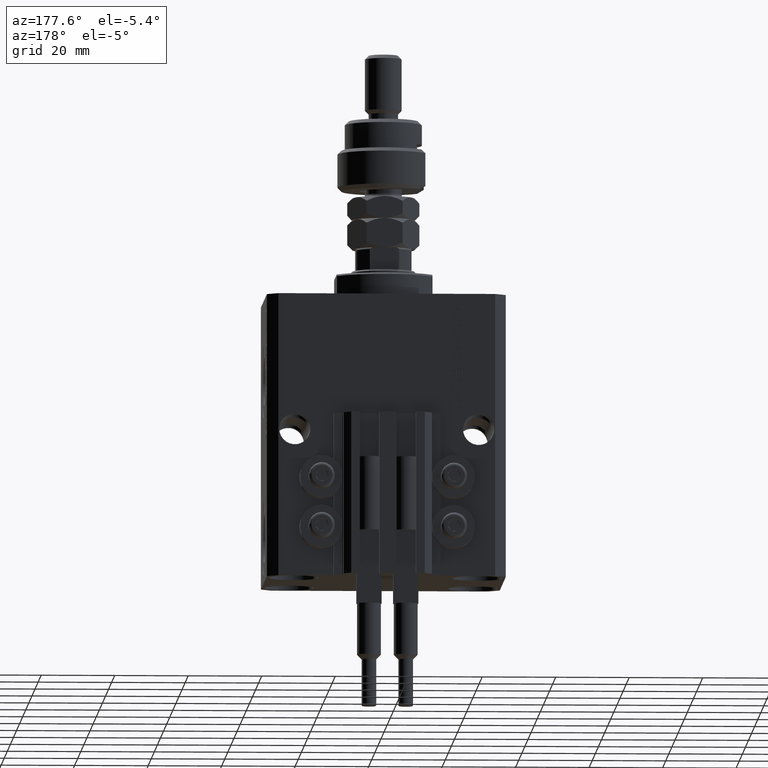
[diagram: clean part render]
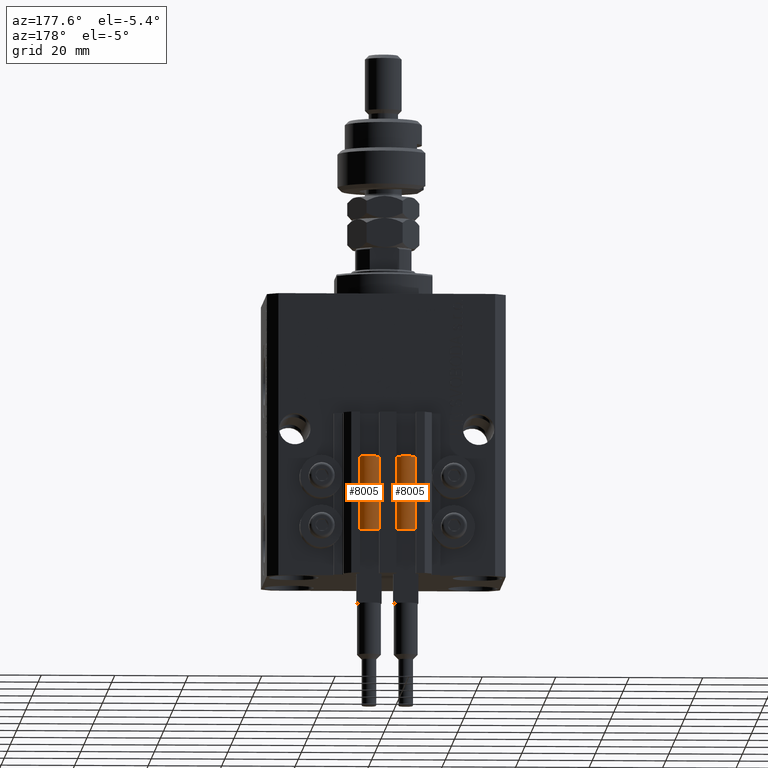
[diagram: same view with one multi-face feature highlighted, each face labeled with its STEP entity id]
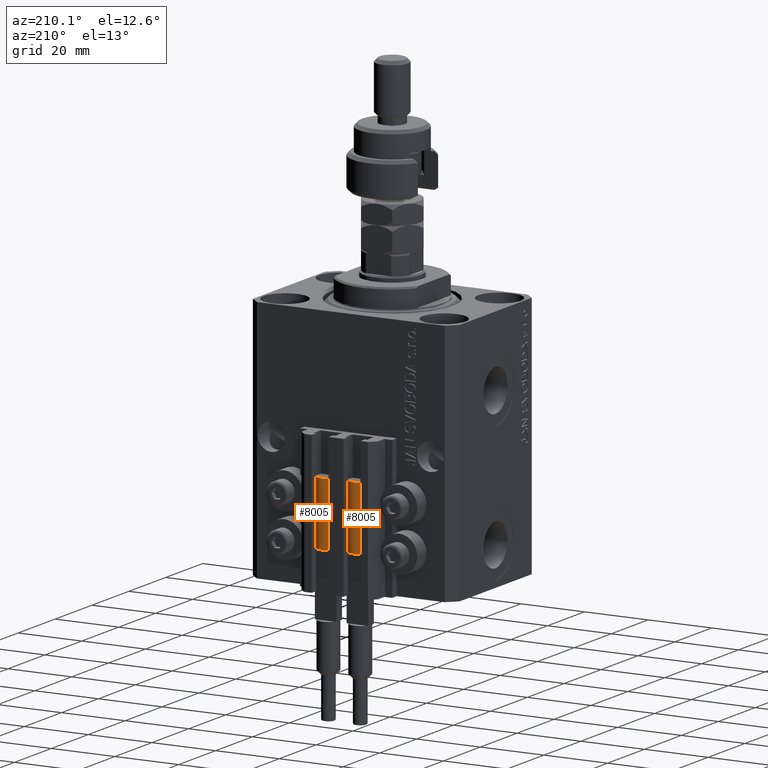
[diagram: same view with one multi-face feature highlighted, each face labeled with its STEP entity id]
A machine part, auxiliary view. The highlighted faces form ONE feature: a constant-radius fillet chain: 2 tangent blend faces with common blend radius 3.4 mm. The faces share edges in the B-rep.
A second angle (auxiliary view) of the same feature is appended — it is thin or edge-on in the first view.
Their STEP definitions:
[1] entity #8005 (Cylinder):
#426 = EDGE_CURVE ( 'NONE', #49537, #34113, #1283, .T. ) ;
#861 = VERTEX_POINT ( 'NONE', #32813 ) ;
#1034 = DIRECTION ( 'NONE',  ( -0.000000000000000000, -0.000000000000000000, -1.000000000000000000 ) ) ;
#1283 = LINE ( 'NONE', #12978, #1531 ) ;
#1531 = VECTOR ( 'NONE', #1034, 1000.000000000000000 ) ;
#2496 = AXIS2_PLACEMENT_3D ( 'NONE', #43883, #28309, #48032 ) ;
#3184 = DIRECTION ( 'NONE',  ( -0.000000000000000000, -0.000000000000000000, -1.000000000000000000 ) ) ;
#3766 = VERTEX_POINT ( 'NONE', #45652 ) ;
#4433 = CARTESIAN_POINT ( 'NONE',  ( -3.400000000000000355, 0.000000000000000000, 0.000000000000000000 ) ) ;
#4488 = EDGE_CURVE ( 'NONE', #3766, #861, #25740, .T. ) ;
#4784 = CARTESIAN_POINT ( 'NONE',  ( 0.000000000000000000, 0.000000000000000000, 20.00000000000000000 ) ) ;
#5520 = ORIENTED_EDGE ( 'NONE', *, *, #9690, .F. ) ;
#7719 = CIRCLE ( 'NONE', #27646, 3.400000000000000355 ) ;
#8005 = ADVANCED_FACE ( 'NONE', ( #50962 ), #23447, .T. ) ;
#8614 = ORIENTED_EDGE ( 'NONE', *, *, #31953, .F. ) ;
#8837 = DIRECTION ( 'NONE',  ( -0.000000000000000000, -0.000000000000000000, -1.000000000000000000 ) ) ;
#9215 = ORIENTED_EDGE ( 'NONE', *, *, #4488, .F. ) ;
#9690 = EDGE_CURVE ( 'NONE', #861, #49537, #7719, .T. ) ;
#10081 = EDGE_CURVE ( 'NONE', #24505, #19708, #20033, .T. ) ;
#10414 = CARTESIAN_POINT ( 'NONE',  ( 3.400000000000000355, 4.163799117101001052E-16, 0.000000000000000000 ) ) ;
#10907 = EDGE_CURVE ( 'NONE', #19708, #34113, #21729, .T. ) ;
#11237 = DIRECTION ( 'NONE',  ( -1.000000000000000000, 0.000000000000000000, 0.000000000000000000 ) ) ;
#11476 = CARTESIAN_POINT ( 'NONE',  ( 0.000000000000000000, 0.000000000000000000, 0.000000000000000000 ) ) ;
#12978 = CARTESIAN_POINT ( 'NONE',  ( -3.400000000000000355, 0.000000000000000000, 20.00000000000000000 ) ) ;
#14310 = CARTESIAN_POINT ( 'NONE',  ( -3.399999999999999467, -4.915049848600952119E-16, 20.00000000000000000 ) ) ;
#14905 = DIRECTION ( 'NONE',  ( 0.000000000000000000, 0.000000000000000000, 1.000000000000000000 ) ) ;
#15370 = DIRECTION ( 'NONE',  ( 0.000000000000000000, 0.000000000000000000, 1.000000000000000000 ) ) ;
#19016 = CARTESIAN_POINT ( 'NONE',  ( 0.000000000000000000, 0.000000000000000000, 20.00000000000000000 ) ) ;
#19708 = VERTEX_POINT ( 'NONE', #10414 ) ;
#20033 = LINE ( 'NONE', #44432, #31792 ) ;
#20874 = DIRECTION ( 'NONE',  ( 1.000000000000000000, 0.000000000000000000, 0.000000000000000000 ) ) ;
#21729 = CIRCLE ( 'NONE', #29178, 3.400000000000000355 ) ;
#22445 = CARTESIAN_POINT ( 'NONE',  ( 0.000000000000000000, 0.000000000000000000, 20.00000000000000000 ) ) ;
#22457 = ORIENTED_EDGE ( 'NONE', *, *, #426, .F. ) ;
#23447 = CYLINDRICAL_SURFACE ( 'NONE', #47431, 3.400000000000000355 ) ;
#24505 = VERTEX_POINT ( 'NONE', #43647 ) ;
#25740 = CIRCLE ( 'NONE', #28241, 3.400000000000000355 ) ;
#27646 = AXIS2_PLACEMENT_3D ( 'NONE', #22445, #14905, #34902 ) ;
#28241 = AXIS2_PLACEMENT_3D ( 'NONE', #4784, #32573, #20874 ) ;
#28309 = DIRECTION ( 'NONE',  ( 0.000000000000000000, 0.000000000000000000, 1.000000000000000000 ) ) ;
#29178 = AXIS2_PLACEMENT_3D ( 'NONE', #11476, #15370, #47061 ) ;
#29846 = ORIENTED_EDGE ( 'NONE', *, *, #10907, .T. ) ;
#31792 = VECTOR ( 'NONE', #8837, 1000.000000000000000 ) ;
#31953 = EDGE_CURVE ( 'NONE', #24505, #3766, #35705, .T. ) ;
#32573 = DIRECTION ( 'NONE',  ( 0.000000000000000000, 0.000000000000000000, 1.000000000000000000 ) ) ;
#32813 = CARTESIAN_POINT ( 'NONE',  ( -3.051229260478471428, 1.500000000000000000, 20.00000000000000000 ) ) ;
#33877 = EDGE_LOOP ( 'NONE', ( #8614, #36564, #29846, #22457, #5520, #9215 ) ) ;
#34113 = VERTEX_POINT ( 'NONE', #4433 ) ;
#34902 = DIRECTION ( 'NONE',  ( 1.000000000000000000, 0.000000000000000000, 0.000000000000000000 ) ) ;
#35705 = CIRCLE ( 'NONE', #2496, 3.400000000000000355 ) ;
#36564 = ORIENTED_EDGE ( 'NONE', *, *, #10081, .T. ) ;
#43647 = CARTESIAN_POINT ( 'NONE',  ( 3.400000000000000355, 0.000000000000000000, 20.00000000000000000 ) ) ;
#43883 = CARTESIAN_POINT ( 'NONE',  ( 0.000000000000000000, 0.000000000000000000, 20.00000000000000000 ) ) ;
#44432 = CARTESIAN_POINT ( 'NONE',  ( 3.400000000000000355, 4.163799117101001052E-16, 20.00000000000000000 ) ) ;
#45652 = CARTESIAN_POINT ( 'NONE',  ( 3.051229260478471428, 1.500000000000000000, 20.00000000000000000 ) ) ;
#47061 = DIRECTION ( 'NONE',  ( 1.000000000000000000, 0.000000000000000000, 0.000000000000000000 ) ) ;
#47431 = AXIS2_PLACEMENT_3D ( 'NONE', #19016, #3184, #11237 ) ;
#48032 = DIRECTION ( 'NONE',  ( 1.000000000000000000, 0.000000000000000000, 0.000000000000000000 ) ) ;
#49537 = VERTEX_POINT ( 'NONE', #14310 ) ;
#50962 = FACE_OUTER_BOUND ( 'NONE', #33877, .T. ) ;
[2] entity #8005 (Cylinder):
#426 = EDGE_CURVE ( 'NONE', #49537, #34113, #1283, .T. ) ;
#861 = VERTEX_POINT ( 'NONE', #32813 ) ;
#1034 = DIRECTION ( 'NONE',  ( -0.000000000000000000, -0.000000000000000000, -1.000000000000000000 ) ) ;
#1283 = LINE ( 'NONE', #12978, #1531 ) ;
#1531 = VECTOR ( 'NONE', #1034, 1000.000000000000000 ) ;
#2496 = AXIS2_PLACEMENT_3D ( 'NONE', #43883, #28309, #48032 ) ;
#3184 = DIRECTION ( 'NONE',  ( -0.000000000000000000, -0.000000000000000000, -1.000000000000000000 ) ) ;
#3766 = VERTEX_POINT ( 'NONE', #45652 ) ;
#4433 = CARTESIAN_POINT ( 'NONE',  ( -3.400000000000000355, 0.000000000000000000, 0.000000000000000000 ) ) ;
#4488 = EDGE_CURVE ( 'NONE', #3766, #861, #25740, .T. ) ;
#4784 = CARTESIAN_POINT ( 'NONE',  ( 0.000000000000000000, 0.000000000000000000, 20.00000000000000000 ) ) ;
#5520 = ORIENTED_EDGE ( 'NONE', *, *, #9690, .F. ) ;
#7719 = CIRCLE ( 'NONE', #27646, 3.400000000000000355 ) ;
#8005 = ADVANCED_FACE ( 'NONE', ( #50962 ), #23447, .T. ) ;
#8614 = ORIENTED_EDGE ( 'NONE', *, *, #31953, .F. ) ;
#8837 = DIRECTION ( 'NONE',  ( -0.000000000000000000, -0.000000000000000000, -1.000000000000000000 ) ) ;
#9215 = ORIENTED_EDGE ( 'NONE', *, *, #4488, .F. ) ;
#9690 = EDGE_CURVE ( 'NONE', #861, #49537, #7719, .T. ) ;
#10081 = EDGE_CURVE ( 'NONE', #24505, #19708, #20033, .T. ) ;
#10414 = CARTESIAN_POINT ( 'NONE',  ( 3.400000000000000355, 4.163799117101001052E-16, 0.000000000000000000 ) ) ;
#10907 = EDGE_CURVE ( 'NONE', #19708, #34113, #21729, .T. ) ;
#11237 = DIRECTION ( 'NONE',  ( -1.000000000000000000, 0.000000000000000000, 0.000000000000000000 ) ) ;
#11476 = CARTESIAN_POINT ( 'NONE',  ( 0.000000000000000000, 0.000000000000000000, 0.000000000000000000 ) ) ;
#12978 = CARTESIAN_POINT ( 'NONE',  ( -3.400000000000000355, 0.000000000000000000, 20.00000000000000000 ) ) ;
#14310 = CARTESIAN_POINT ( 'NONE',  ( -3.399999999999999467, -4.915049848600952119E-16, 20.00000000000000000 ) ) ;
#14905 = DIRECTION ( 'NONE',  ( 0.000000000000000000, 0.000000000000000000, 1.000000000000000000 ) ) ;
#15370 = DIRECTION ( 'NONE',  ( 0.000000000000000000, 0.000000000000000000, 1.000000000000000000 ) ) ;
#19016 = CARTESIAN_POINT ( 'NONE',  ( 0.000000000000000000, 0.000000000000000000, 20.00000000000000000 ) ) ;
#19708 = VERTEX_POINT ( 'NONE', #10414 ) ;
#20033 = LINE ( 'NONE', #44432, #31792 ) ;
#20874 = DIRECTION ( 'NONE',  ( 1.000000000000000000, 0.000000000000000000, 0.000000000000000000 ) ) ;
#21729 = CIRCLE ( 'NONE', #29178, 3.400000000000000355 ) ;
#22445 = CARTESIAN_POINT ( 'NONE',  ( 0.000000000000000000, 0.000000000000000000, 20.00000000000000000 ) ) ;
#22457 = ORIENTED_EDGE ( 'NONE', *, *, #426, .F. ) ;
#23447 = CYLINDRICAL_SURFACE ( 'NONE', #47431, 3.400000000000000355 ) ;
#24505 = VERTEX_POINT ( 'NONE', #43647 ) ;
#25740 = CIRCLE ( 'NONE', #28241, 3.400000000000000355 ) ;
#27646 = AXIS2_PLACEMENT_3D ( 'NONE', #22445, #14905, #34902 ) ;
#28241 = AXIS2_PLACEMENT_3D ( 'NONE', #4784, #32573, #20874 ) ;
#28309 = DIRECTION ( 'NONE',  ( 0.000000000000000000, 0.000000000000000000, 1.000000000000000000 ) ) ;
#29178 = AXIS2_PLACEMENT_3D ( 'NONE', #11476, #15370, #47061 ) ;
#29846 = ORIENTED_EDGE ( 'NONE', *, *, #10907, .T. ) ;
#31792 = VECTOR ( 'NONE', #8837, 1000.000000000000000 ) ;
#31953 = EDGE_CURVE ( 'NONE', #24505, #3766, #35705, .T. ) ;
#32573 = DIRECTION ( 'NONE',  ( 0.000000000000000000, 0.000000000000000000, 1.000000000000000000 ) ) ;
#32813 = CARTESIAN_POINT ( 'NONE',  ( -3.051229260478471428, 1.500000000000000000, 20.00000000000000000 ) ) ;
#33877 = EDGE_LOOP ( 'NONE', ( #8614, #36564, #29846, #22457, #5520, #9215 ) ) ;
#34113 = VERTEX_POINT ( 'NONE', #4433 ) ;
#34902 = DIRECTION ( 'NONE',  ( 1.000000000000000000, 0.000000000000000000, 0.000000000000000000 ) ) ;
#35705 = CIRCLE ( 'NONE', #2496, 3.400000000000000355 ) ;
#36564 = ORIENTED_EDGE ( 'NONE', *, *, #10081, .T. ) ;
#43647 = CARTESIAN_POINT ( 'NONE',  ( 3.400000000000000355, 0.000000000000000000, 20.00000000000000000 ) ) ;
#43883 = CARTESIAN_POINT ( 'NONE',  ( 0.000000000000000000, 0.000000000000000000, 20.00000000000000000 ) ) ;
#44432 = CARTESIAN_POINT ( 'NONE',  ( 3.400000000000000355, 4.163799117101001052E-16, 20.00000000000000000 ) ) ;
#45652 = CARTESIAN_POINT ( 'NONE',  ( 3.051229260478471428, 1.500000000000000000, 20.00000000000000000 ) ) ;
#47061 = DIRECTION ( 'NONE',  ( 1.000000000000000000, 0.000000000000000000, 0.000000000000000000 ) ) ;
#47431 = AXIS2_PLACEMENT_3D ( 'NONE', #19016, #3184, #11237 ) ;
#48032 = DIRECTION ( 'NONE',  ( 1.000000000000000000, 0.000000000000000000, 0.000000000000000000 ) ) ;
#49537 = VERTEX_POINT ( 'NONE', #14310 ) ;
#50962 = FACE_OUTER_BOUND ( 'NONE', #33877, .T. ) ;